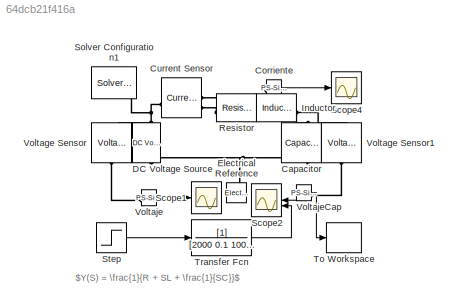
MODEL slx_64dcb21f416a
KIND model
CONFIG AbsTol = 1e-3
CONFIG EnableMultiTasking = off
CONFIG FixedStep = auto
CONFIG MaxStep = auto
CONFIG MinStep = auto
CONFIG RelTol = 1e-3
CONFIG SampleTimeConstraint = Unconstrained
CONFIG SolverName = VariableStepAuto
CONFIG StartTime = 0.0
CONFIG StopTime = 0.01
BLOCK [Reference] Capacitor  REF=fl_lib/Electrical/Electrical Elements/Capacitor
  NameLocation = left
  SourceBlock = fl_lib/Electrical/Electrical Elements/Capacitor
  SourceType = Capacitor
BLOCK [Reference] Corriente  REF=nesl_utility/PS-Simulink
Converter
  SourceBlock = nesl_utility/PS-Simulink\nConverter
  SourceType = PS-Simulink\nConverter
BLOCK [Reference] Current Sensor  REF=fl_lib/Electrical/Electrical Sensors/Current Sensor
  SourceBlock = fl_lib/Electrical/Electrical Sensors/Current Sensor
  SourceType = Current Sensor
BLOCK [Reference] DC Voltage Source  REF=fl_lib/Electrical/Electrical Sources/DC Voltage Source
  NameLocation = right
  SourceBlock = fl_lib/Electrical/Electrical Sources/DC Voltage Source
  SourceType = DC Voltage Source
BLOCK [Reference] Electrical Reference  REF=fl_lib/Electrical/Electrical Elements/Electrical Reference
  NameLocation = right
  SourceBlock = fl_lib/Electrical/Electrical Elements/Electrical Reference
  SourceType = Electrical Reference
BLOCK [Reference] Inductor  REF=fl_lib/Electrical/Electrical Elements/Inductor
  SourceBlock = fl_lib/Electrical/Electrical Elements/Inductor
  SourceType = Inductor
BLOCK [Reference] Resistor  REF=fl_lib/Electrical/Electrical Elements/Resistor
  SourceBlock = fl_lib/Electrical/Electrical Elements/Resistor
  SourceType = Resistor
BLOCK [Scope] Scope1
  ActiveDisplayYMaximum = 6
  ActiveDisplayYMinimum = 4
  ContainerLayout = {"WindowBounds":[1055,1531,340,598],"gridDimensions":{"w":1,"h":1},"tileCount":1,"tileCoverage":1,"columnWeights":1,"rowWeights":1,"tileOccupancy":{"children":[{"id":"/Scope4"},{"id":"/Scope1"},{"id":"/Scope2"}]}}
  DataLoggingVariableName = ScopeData1
  Floating = off
  GraphicalSettings = {"Style":{"BackgroundColor":[0.12941176470588237,0.12941176470588237,0.12941176470588237],"AxesColor":[0.07058823529411765,0.07058823529411765,0.07058823529411765],"LabelsColor":[0.8509803921568627,0.8509803921568627,0.8509803921568627],"PreserveColors":false,"Visible":[true],"LineStyle":["-"],"LineWidth":[1.5],"BarWidth":[0.9],"LineColor":["auto"],"LineFaceAlpha":[1],"LineEdgeAlpha":[1],"Marker":...<+1941ch>
  MultipleDisplayCache = [{"MaxYLimMag":6,"MaxYLimReal":6,"MinYLimMag":4,"MinYLimReal":4,"PlotAsMagnitudePhase":false,"ShowGrid":true,"ShowLegend":true,"Title":"Grafica de voltaje.","YLabel":"Voltaje"}]
  NumInputPorts = 1
  ShowLegend = on
  ShowTimeAxisLabel = on
  TimeAxisLabels = All
  Title = Grafica de voltaje.
  Visible = on
  WasSavedAsWebScope = on
  WindowPosition = [680 330 560 447]
  YLabel = Voltaje
BLOCK [Scope] Scope2
  ActiveDisplayYMaximum = 4.9731070631350631
  ActiveDisplayYMinimum = -0.060650049082751956
  ContainerLayout = {"WindowBounds":[-9999,1529,1395,600]}
  DataLoggingVariableName = ScopeData2
  Floating = off
  GraphicalSettings = {"Style":{"BackgroundColor":[0.12941176470588237,0.12941176470588237,0.12941176470588237],"AxesColor":[0.07058823529411765,0.07058823529411765,0.07058823529411765],"LabelsColor":[0.8509803921568627,0.8509803921568627,0.8509803921568627],"PreserveColors":false,"Visible":[true,true],"LineStyle":["-",":"],"LineWidth":[3,3],"BarWidth":[0.9,0.9],"LineColor":["auto","auto"],"LineFaceAlpha":[1,1],"LineEd...<+2218ch>
  MultipleDisplayCache = [{"MaxYLimMag":5.6308250579011947,"MaxYLimReal":4.9731070631350631,"MinYLimMag":0,"MinYLimReal":-0.060650049082751956,"PlotAsMagnitudePhase":false,"ShowGrid":true,"ShowLegend":true,"Title":"Funcion de transferencia vs Salida del circuito","YLabel":"Voltaje"}]
  NameLocation = top
  NumInputPorts = 2
  ShowLegend = on
  ShowTimeAxisLabel = on
  Title = Funcion de transferencia vs Salida del circuito
  Visible = on
  WasSavedAsWebScope = on
  WindowPosition = [1055.000000,1.000000,342.000000,602.000000,]
  YLabel = Voltaje
BLOCK [Scope] Scope4
  ActiveDisplayYMaximum = 0.0034772686897663217
  ActiveDisplayYMinimum = -0.0019993928048791867
  ContainerLayout = {"WindowBounds":[1055,1531,340,598],"gridDimensions":{"w":1,"h":1},"tileCount":1,"tileCoverage":1,"columnWeights":1,"rowWeights":1,"tileOccupancy":{"children":[{"id":"/Scope4"},{"id":"/Scope1"},{"id":"/Scope2"}]}}
  DataLoggingVariableName = ScopeData1
  DisplayFullPath = on
  Floating = off
  GraphicalSettings = {"Style":{"BackgroundColor":[0.12941176470588237,0.12941176470588237,0.12941176470588237],"AxesColor":[0.07058823529411765,0.07058823529411765,0.07058823529411765],"LabelsColor":[0.8509803921568627,0.8509803921568627,0.8509803921568627],"PreserveColors":false,"Visible":[true],"LineStyle":["-"],"LineWidth":[1.5],"BarWidth":[0.9],"LineColor":["auto"],"LineFaceAlpha":[1],"LineEdgeAlpha":[1],"Marker":...<+2051ch>
  MaximizeAxes = Auto
  MultipleDisplayCache = [{"MaxYLimMag":10,"MaxYLimReal":0.0034772686897663217,"MinYLimMag":0,"MinYLimReal":-0.0019993928048791867,"PlotAsMagnitudePhase":false,"ShowGrid":true,"ShowLegend":true,"Title":"Grafica de corriente","YLabel":"Intensidad"}]
  NumInputPorts = 1
  OpenAtSimulationStart = on
  ShowLegend = on
  ShowTimeAxisLabel = on
  Title = Grafica de corriente
  Visible = on
  WasSavedAsWebScope = on
  WindowPosition = [962 50 958 457]
  YLabel = Intensidad
BLOCK [Reference] Solver Configuration1  REF=nesl_utility/Solver
Configuration
  SourceBlock = nesl_utility/Solver\nConfiguration
  SourceType = Solver\nConfiguration
BLOCK [Step] Step
  After = 5
  SampleTime = 0
  Time = 0
BLOCK [ToWorkspace] To Workspace
  FixptAsFi = on
  MaxDataPoints = inf
  SampleTime = -1
  SaveFormat = Timeseries
  VariableName = vc
BLOCK [TransferFcn] Transfer Fcn
  Denominator = [2000 0.1 1000000]
BLOCK [Reference] Voltage Sensor  REF=fl_lib/Electrical/Electrical Sensors/Voltage Sensor
  NameLocation = right
  SourceBlock = fl_lib/Electrical/Electrical Sensors/Voltage Sensor
  SourceType = Voltage Sensor
BLOCK [Reference] Voltage Sensor1  REF=fl_lib/Electrical/Electrical Sensors/Voltage Sensor
  NameLocation = right
  SourceBlock = fl_lib/Electrical/Electrical Sensors/Voltage Sensor
  SourceType = Voltage Sensor
BLOCK [Reference] Voltaje  REF=nesl_utility/PS-Simulink
Converter
  SourceBlock = nesl_utility/PS-Simulink\nConverter
  SourceType = PS-Simulink\nConverter
BLOCK [Reference] VoltajeCap  REF=nesl_utility/PS-Simulink
Converter
  NameLocation = top
  SourceBlock = nesl_utility/PS-Simulink\nConverter
  SourceType = PS-Simulink\nConverter
ANNOTATION (root): $Y(S) = \frac{1}{R + SL + \frac{1}{SC}}$
LINE Corriente:1 -> Scope4:1
LINE Step:1 -> Transfer Fcn:1
LINE Transfer Fcn:1 -> Scope2:2
LINE Voltaje:1 -> Scope1:1
NET VoltajeCap:1 -> Scope2:1, To Workspace:1
PNET net1: Capacitor:LConn1 -- Inductor:RConn1 -- Voltage Sensor1:LConn1
PNET net2: Capacitor:RConn1 -- DC Voltage Source:RConn1 -- Electrical Reference:LConn1 -- Voltage Sensor1:RConn2 -- Voltage Sensor:RConn2
PLINE Corriente:LConn1 -- Current Sensor:RConn1
PNET net3: Current Sensor:LConn1 -- DC Voltage Source:LConn1 -- Solver Configuration1:RConn1 -- Voltage Sensor:LConn1
PLINE Current Sensor:RConn2 -- Resistor:LConn1
PLINE Inductor:LConn1 -- Resistor:RConn1
PLINE Voltage Sensor1:RConn1 -- VoltajeCap:LConn1
PLINE Voltage Sensor:RConn1 -- Voltaje:LConn1
note: NET lines group one-source signal fan-out (src -> all destinations, sorted); 1:1 wires keep LINE; PNET lines group multi-terminal physical nets as a canonical sorted terminal list (undirected conserving connections); 2-terminal nets keep the pairwise PLINE form
